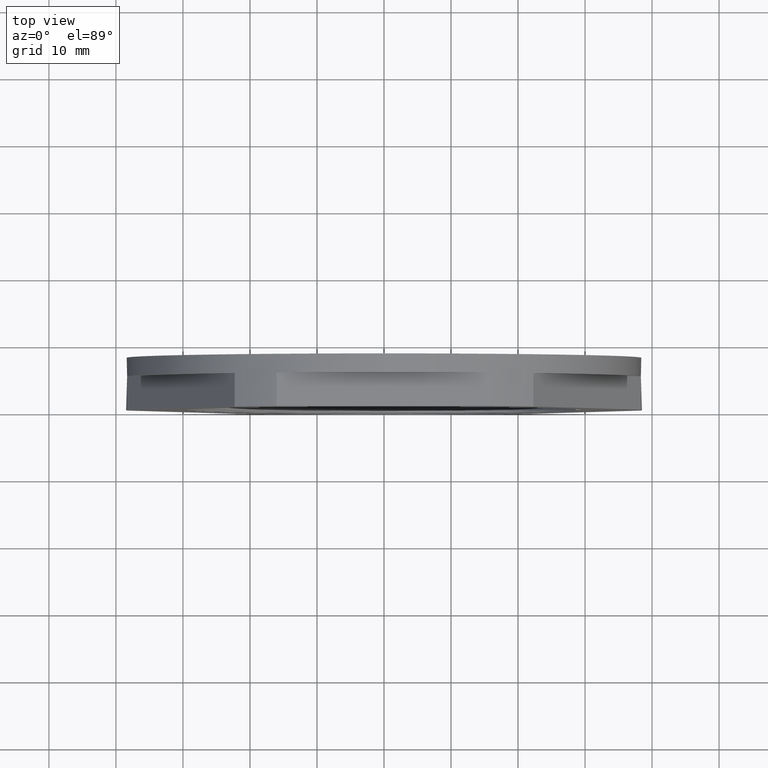
[diagram: clean part render]
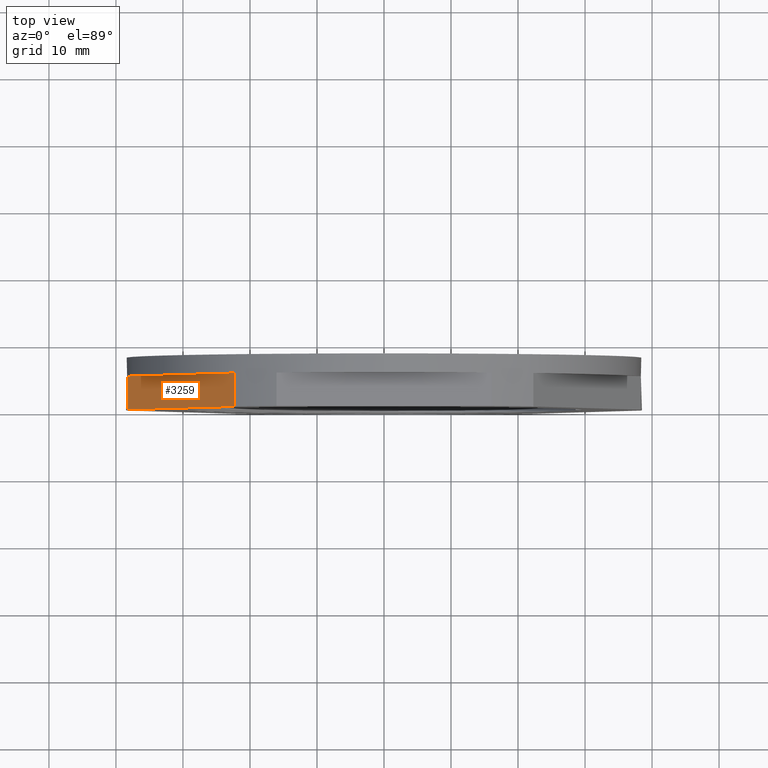
[diagram: same view with one face highlighted and labeled with its STEP entity id]
A machine part, top view. The second image highlights one B-rep face of the part: STEP entity #3259.
In plain terms, the highlighted planar face has unit normal (0.866, 0, -0.5).
Its self-contained STEP definition (entity closure, byte-faithful):
#373 = LINE ( 'NONE', #374, #3053 ) ;
#374 = CARTESIAN_POINT ( 'NONE',  ( -22.29138166628267500, 0.0000000000000000000, 31.39019438308907100 ) ) ;
#389 = DIRECTION ( 'NONE',  ( -0.0000000000000000000, -1.000000000000000000, -0.0000000000000000000 ) ) ;
#466 = LINE ( 'NONE', #476, #3018 ) ;
#468 = DIRECTION ( 'NONE',  ( 0.5000000000000001100, -0.0000000000000000000, 0.8660254037844386000 ) ) ;
#476 = CARTESIAN_POINT ( 'NONE',  ( -40.41451884327383900, 4.999999999999999100, 6.887754595093779700E-015 ) ) ;
#651 = CARTESIAN_POINT ( 'NONE',  ( -38.33039659862807000, 0.0000000000000000000, 3.609805616910920300 ) ) ;
#654 = DIRECTION ( 'NONE',  ( 0.0000000000000000000, 1.000000000000000000, 0.0000000000000000000 ) ) ;
#675 = LINE ( 'NONE', #651, #3062 ) ;
#1472 = ORIENTED_EDGE ( 'NONE', *, *, #3195, .T. ) ;
#1518 = ORIENTED_EDGE ( 'NONE', *, *, #3235, .F. ) ;
#1535 = CARTESIAN_POINT ( 'NONE',  ( -22.29138166628266800, 0.0000000000000000000, 31.39019438308907800 ) ) ;
#1557 = ORIENTED_EDGE ( 'NONE', *, *, #3218, .F. ) ;
#1575 = CARTESIAN_POINT ( 'NONE',  ( -22.29138166628267500, 4.999999999999999100, 31.39019438308907100 ) ) ;
#1585 = CARTESIAN_POINT ( 'NONE',  ( -38.33039659862806300, 4.999999999999999100, 3.609805616910940700 ) ) ;
#1587 = ORIENTED_EDGE ( 'NONE', *, *, #3221, .F. ) ;
#1620 = CARTESIAN_POINT ( 'NONE',  ( -38.33039659862806300, 0.0000000000000000000, 3.609805616910937200 ) ) ;
#1783 = CARTESIAN_POINT ( 'NONE',  ( -38.33039659862807000, 0.0000000000000000000, 3.609805616910942000 ) ) ;
#1785 = LINE ( 'NONE', #1783, #3029 ) ;
#1787 = DIRECTION ( 'NONE',  ( 0.5000000000000003300, 0.0000000000000000000, 0.8660254037844383700 ) ) ;
#1924 = EDGE_LOOP ( 'NONE', ( #1518, #1472, #1557, #1587 ) ) ;
#1943 = VERTEX_POINT ( 'NONE', #1575 ) ;
#1962 = VERTEX_POINT ( 'NONE', #1585 ) ;
#1967 = VERTEX_POINT ( 'NONE', #1535 ) ;
#1999 = VERTEX_POINT ( 'NONE', #1620 ) ;
#2235 = CARTESIAN_POINT ( 'NONE',  ( -40.41451884327383900, 7.799999999999999800, 6.887754595093779700E-015 ) ) ;
#2240 = DIRECTION ( 'NONE',  ( -0.5000000000000001100, 0.0000000000000000000, -0.8660254037844386000 ) ) ;
#2241 = FACE_OUTER_BOUND ( 'NONE', #1924, .T. ) ;
#2244 = DIRECTION ( 'NONE',  ( 0.8660254037844386000, 0.0000000000000000000, -0.5000000000000001100 ) ) ;
#2251 = PLANE ( 'NONE',  #3078 ) ;
#3018 = VECTOR ( 'NONE', #468, 1000.000000000000000 ) ;
#3029 = VECTOR ( 'NONE', #1787, 1000.000000000000100 ) ;
#3053 = VECTOR ( 'NONE', #389, 1000.000000000000000 ) ;
#3062 = VECTOR ( 'NONE', #654, 1000.000000000000000 ) ;
#3078 = AXIS2_PLACEMENT_3D ( 'NONE', #2235, #2244, #2240 ) ;
#3195 = EDGE_CURVE ( 'NONE', #1999, #1967, #1785, .T. ) ;
#3218 = EDGE_CURVE ( 'NONE', #1943, #1967, #373, .T. ) ;
#3221 = EDGE_CURVE ( 'NONE', #1962, #1943, #466, .T. ) ;
#3235 = EDGE_CURVE ( 'NONE', #1999, #1962, #675, .T. ) ;
#3259 = ADVANCED_FACE ( 'NONE', ( #2241 ), #2251, .F. ) ;